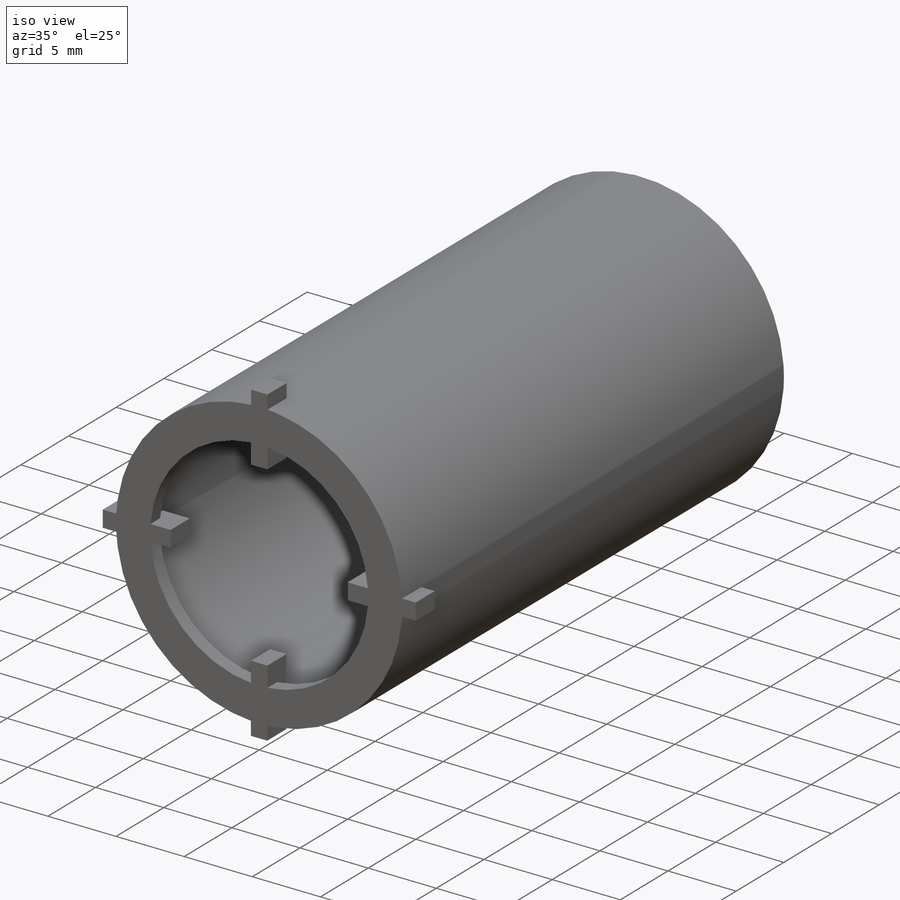
[diagram: iso view]
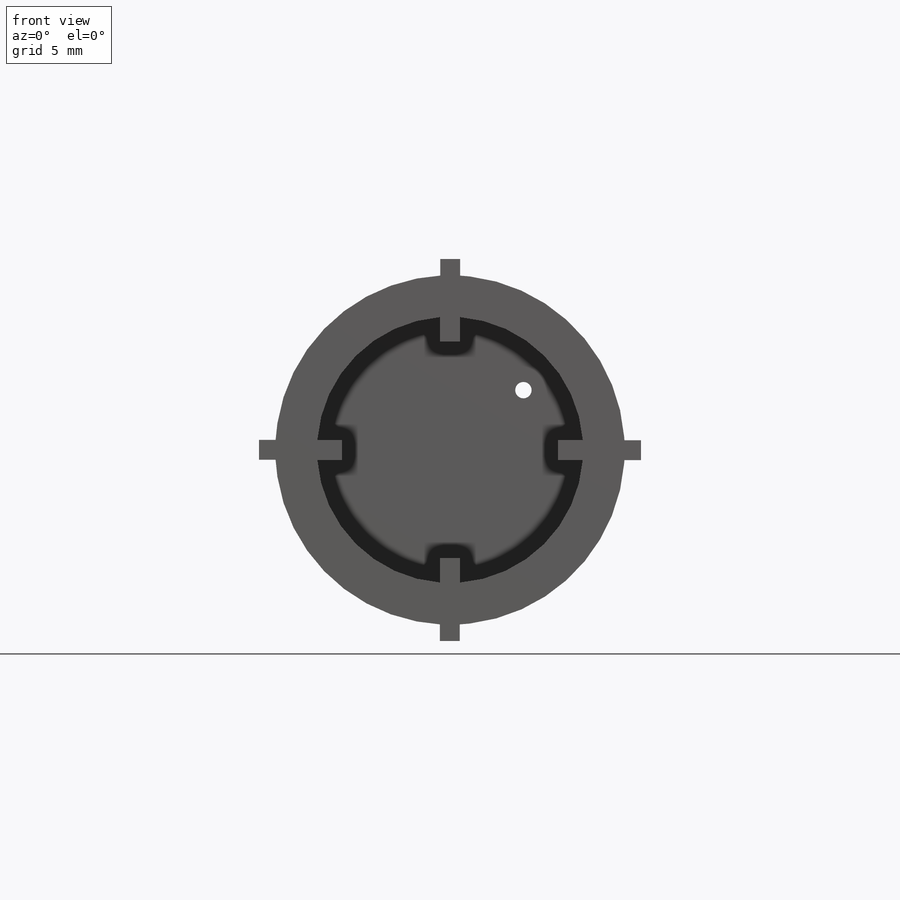
[diagram: front view]
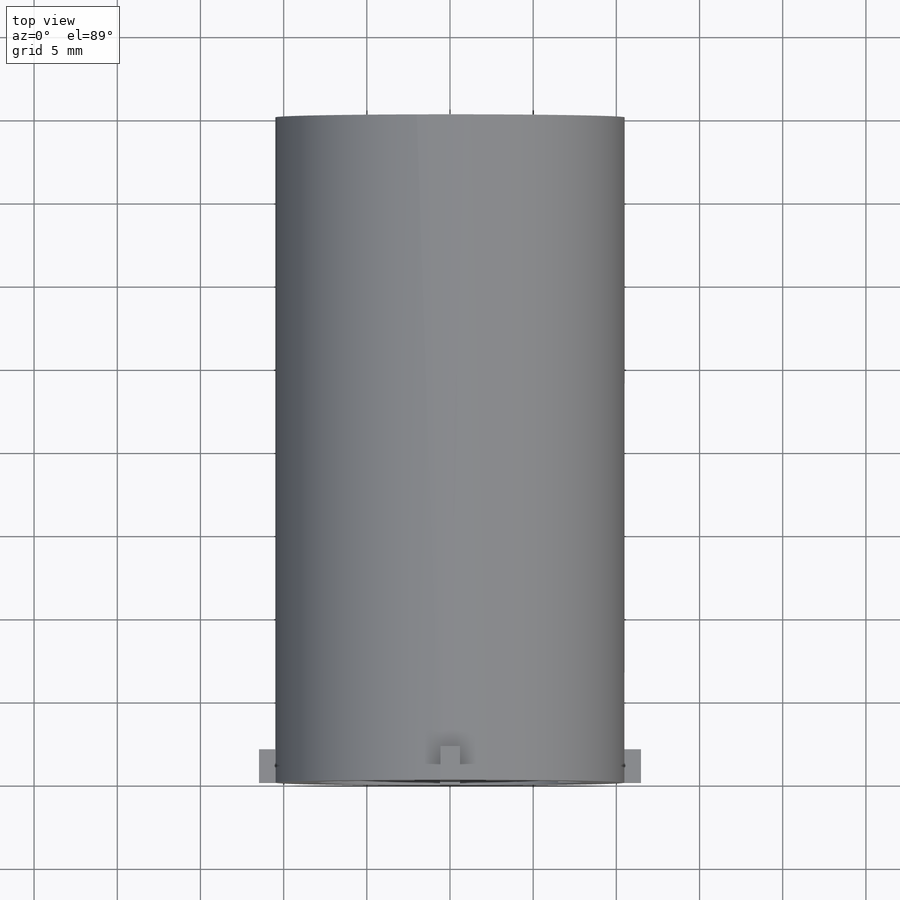
[diagram: top view]
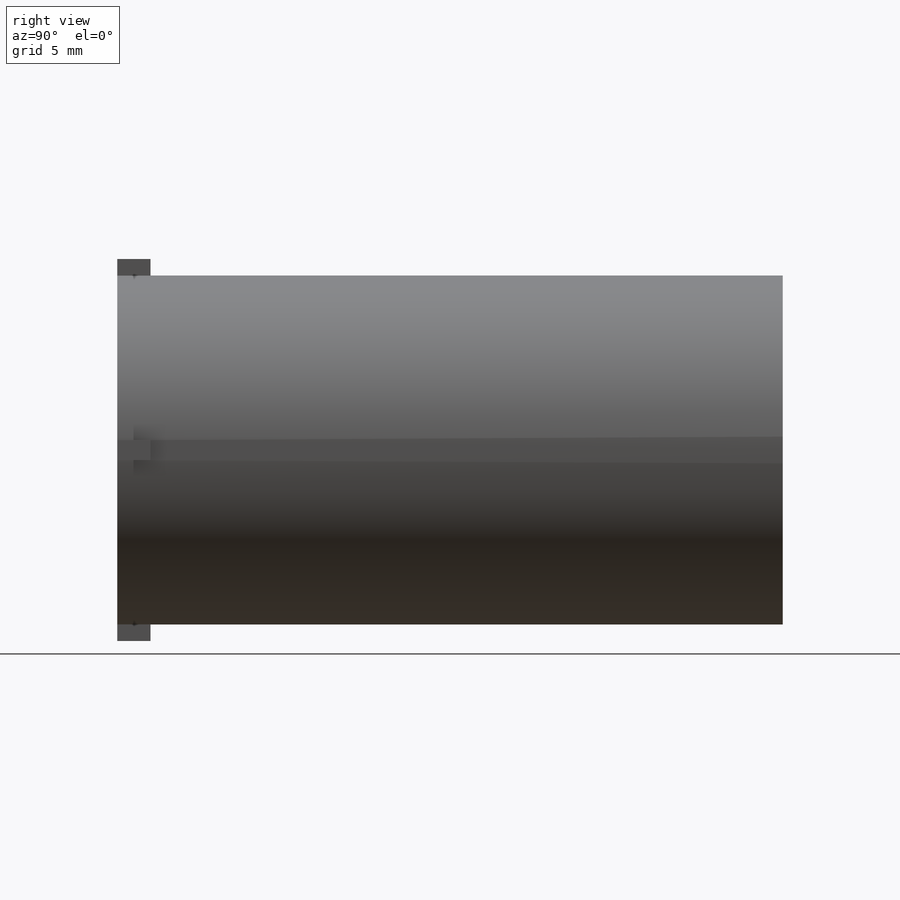
[diagram: right view]
SOLIDWORKS PART (.sldprt)
format: sldprt  version: not decoded by parser v0  size: 299,008 bytes
history: native  units: mm
features: sketch x6, extrude x4, plane x3, material x1, cut_extrude x1, pattern_circular x1 + 2 further entries (+11 scaffold rows collapsed)
feature tree (29):
  scaffold x11  (default folders/planes/origin — collapsed)
  material  "材料 <未指定>"
  "ｻｰﾌｪｽ ﾎﾞﾃﾞｨ"
  "ｿﾘｯﾄﾞ ﾎﾞﾃﾞｨ"
  plane  "正面"
  plane  "平面"
  plane  "右側面"
  sketch  "ｽｹｯﾁ1"  dims[D1=21.0mm D2=19.0mm]
  extrude  "ﾎﾞｽ - 押し出し1"  Depth=40mm
  sketch  "ｽｹｯﾁ2"  dims[D1=21.0mm]
  extrude  "ﾎﾞｽ - 押し出し2"  Depth=1mm
  sketch  "ｽｹｯﾁ3"
  cut_extrude  "ｶｯﾄ - 押し出し1"  Depth=1mm
  sketch  "ｽｹｯﾁ4"  dims[D1=15.0mm]
  sketch  "ｽｹｯﾁ5"  dims[D1=1.2mm D2=2.0mm D3=2.0mm D4=1.2mm]
  sketch  "ｽｹｯﾁ6"  dims[D1=20.0mm D2=16.0mm]
  extrude  "ﾎﾞｽ - 押し出し3"  Depth=1mm
  extrude  "ﾎﾞｽ - 押し出し4"  Depth=2mm
  pattern_circular  "円形ﾊﾟﾀｰﾝ1"  Count=4 Angle=360deg
decode coverage: 11 of 12 modeling features carry decoded parameters; 2 rows unclassified (native names shown)
note: suppression state not decoded; provenance and decode notes live in map.json
